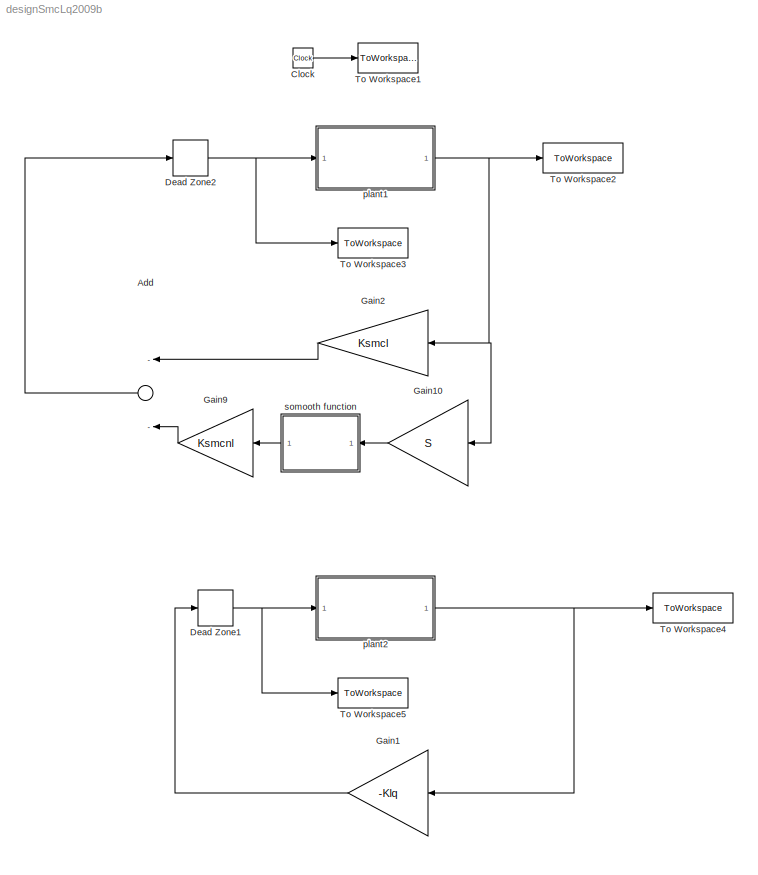
MODEL designSmcLq2009b
KIND model
BLOCK [Sum] Add
  InputSameDT = off
  Inputs = --
  OutDataTypeMode = Inherit via internal rule
  OutDataTypeStr = Inherit: Inherit via internal rule
  Ports = [2, 1]
  SID = 442
  SaturateOnIntegerOverflow = off
BLOCK [Clock] Clock
  SID = 120
BLOCK [DeadZone] Dead Zone1
  LowerValue = -amp
  SID = 465
  UpperValue = amp
BLOCK [DeadZone] Dead Zone2
  LowerValue = -amp
  SID = 467
  UpperValue = amp
BLOCK [Gain] Gain1
  Gain = -Klq
  Multiplication = Matrix(K*u)
  OutDataTypeMode = Inherit via internal rule
  OutDataTypeStr = Inherit: Inherit via internal rule
  ParamDataTypeStr = Inherit: Inherit via internal rule
  ParameterDataTypeMode = Inherit via internal rule
  SID = 463
  SaturateOnIntegerOverflow = off
BLOCK [Gain] Gain10
  Gain = S
  Multiplication = Matrix(K*u)
  OutDataTypeMode = Inherit via internal rule
  OutDataTypeStr = Inherit: Inherit via internal rule
  ParamDataTypeStr = Inherit: Inherit via internal rule
  ParameterDataTypeMode = Inherit via internal rule
  SID = 418
  SaturateOnIntegerOverflow = off
BLOCK [Gain] Gain2
  Gain = Ksmcl
  Multiplication = Matrix(K*u)
  OutDataTypeMode = Inherit via internal rule
  OutDataTypeStr = Inherit: Inherit via internal rule
  ParamDataTypeStr = Inherit: Inherit via internal rule
  ParameterDataTypeMode = Inherit via internal rule
  SID = 431
  SaturateOnIntegerOverflow = off
BLOCK [Gain] Gain9
  Gain = Ksmcnl
  OutDataTypeMode = Inherit via internal rule
  OutDataTypeStr = Inherit: Inherit via internal rule
  ParamDataTypeStr = Inherit: Inherit via internal rule
  ParameterDataTypeMode = Inherit via internal rule
  SID = 420
  SaturateOnIntegerOverflow = off
BLOCK [ToWorkspace] To Workspace1
  MaxDataPoints = inf
  Ports = [1]
  SID = 121
  SampleTime = -1
  VariableName = simTime
BLOCK [ToWorkspace] To Workspace2
  MaxDataPoints = inf
  Ports = [1]
  SID = 433
  SampleTime = -1
  VariableName = X
BLOCK [ToWorkspace] To Workspace3
  MaxDataPoints = inf
  Ports = [1]
  SID = 434
  SampleTime = -1
  VariableName = u
BLOCK [ToWorkspace] To Workspace4
  MaxDataPoints = inf
  Ports = [1]
  SID = 447
  SampleTime = -1
  VariableName = Xlq
BLOCK [ToWorkspace] To Workspace5
  MaxDataPoints = inf
  Ports = [1]
  SID = 448
  SampleTime = -1
  VariableName = ulq
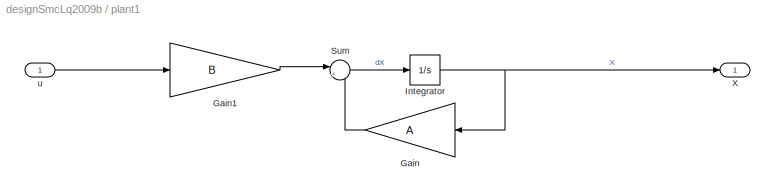
BLOCK [SubSystem] plant1
  FunctionWithSeparateData = off
  MaskHideContents = off
  MinAlgLoopOccurrences = off
  Opaque = off
  Ports = [1, 1]
  PropExecContextOutsideSubsystem = off
  RTWSystemCode = Auto
  RequestExecContextInheritance = off
  SID = 435
BLOCK [Gain] plant1/Gain
  Gain = A
  Multiplication = Matrix(K*u)
  OutDataTypeMode = Inherit via internal rule
  OutDataTypeStr = Inherit: Inherit via internal rule
  ParamDataTypeStr = Inherit: Inherit via internal rule
  ParameterDataTypeMode = Inherit via internal rule
  SID = 437
  SaturateOnIntegerOverflow = off
BLOCK [Gain] plant1/Gain1
  Gain = B
  Multiplication = Matrix(K*u)
  OutDataTypeMode = Inherit via internal rule
  OutDataTypeStr = Inherit: Inherit via internal rule
  ParamDataTypeStr = Inherit: Inherit via internal rule
  ParameterDataTypeMode = Inherit via internal rule
  SID = 438
  SaturateOnIntegerOverflow = off
BLOCK [Integrator] plant1/Integrator
  InitialCondition = x0
  Ports = [1, 1]
  SID = 439
BLOCK [Sum] plant1/Sum
  IconShape = round
  InputSameDT = off
  Inputs = |++
  OutDataTypeMode = Inherit via internal rule
  OutDataTypeStr = Inherit: Inherit via internal rule
  Ports = [2, 1]
  SID = 440
  SaturateOnIntegerOverflow = off
BLOCK [Outport] plant1/X
  IconDisplay = Port number
  SID = 441
BLOCK [Inport] plant1/u
  IconDisplay = Port number
  SID = 436
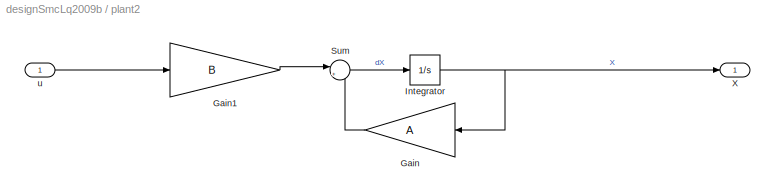
BLOCK [SubSystem] plant2
  FunctionWithSeparateData = off
  MaskHideContents = off
  MinAlgLoopOccurrences = off
  Opaque = off
  Ports = [1, 1]
  PropExecContextOutsideSubsystem = off
  RTWSystemCode = Auto
  RequestExecContextInheritance = off
  SID = 449
BLOCK [Gain] plant2/Gain
  Gain = A
  Multiplication = Matrix(K*u)
  OutDataTypeMode = Inherit via internal rule
  OutDataTypeStr = Inherit: Inherit via internal rule
  ParamDataTypeStr = Inherit: Inherit via internal rule
  ParameterDataTypeMode = Inherit via internal rule
  SID = 451
  SaturateOnIntegerOverflow = off
BLOCK [Gain] plant2/Gain1
  Gain = B
  Multiplication = Matrix(K*u)
  OutDataTypeMode = Inherit via internal rule
  OutDataTypeStr = Inherit: Inherit via internal rule
  ParamDataTypeStr = Inherit: Inherit via internal rule
  ParameterDataTypeMode = Inherit via internal rule
  SID = 452
  SaturateOnIntegerOverflow = off
BLOCK [Integrator] plant2/Integrator
  InitialCondition = x0
  Ports = [1, 1]
  SID = 453
BLOCK [Sum] plant2/Sum
  IconShape = round
  InputSameDT = off
  Inputs = |++
  OutDataTypeMode = Inherit via internal rule
  OutDataTypeStr = Inherit: Inherit via internal rule
  Ports = [2, 1]
  SID = 454
  SaturateOnIntegerOverflow = off
BLOCK [Outport] plant2/X
  IconDisplay = Port number
  SID = 455
BLOCK [Inport] plant2/u
  IconDisplay = Port number
  SID = 450
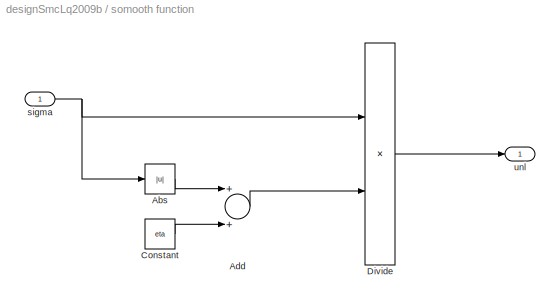
BLOCK [SubSystem] somooth function
  FunctionWithSeparateData = off
  MaskHideContents = off
  MinAlgLoopOccurrences = off
  Opaque = off
  Ports = [1, 1]
  PropExecContextOutsideSubsystem = off
  RTWSystemCode = Auto
  RequestExecContextInheritance = off
  SID = 421
BLOCK [Abs] somooth function/Abs
  SID = 423
  SaturateOnIntegerOverflow = off
BLOCK [Sum] somooth function/Add
  InputSameDT = off
  OutDataTypeMode = Inherit via internal rule
  OutDataTypeStr = Inherit: Inherit via internal rule
  Ports = [2, 1]
  SID = 424
  SaturateOnIntegerOverflow = off
BLOCK [Constant] somooth function/Constant
  SID = 425
  Value = eta
BLOCK [Product] somooth function/Divide
  InputSameDT = off
  Inputs = */
  OutDataTypeMode = Inherit via internal rule
  OutDataTypeStr = Inherit: Inherit via internal rule
  Ports = [2, 1]
  RndMeth = Floor
  SID = 426
  SaturateOnIntegerOverflow = off
BLOCK [Inport] somooth function/sigma
  IconDisplay = Port number
  SID = 422
BLOCK [Outport] somooth function/unl
  IconDisplay = Port number
  SID = 427
LINE Add:1 -> Dead Zone2:1
LINE Clock:1 -> To Workspace1:1
NET Dead Zone1:1 -> To Workspace5:1, plant2:1
NET Dead Zone2:1 -> To Workspace3:1, plant1:1
LINE Gain10:1 -> somooth function:1
LINE Gain1:1 -> Dead Zone1:1
LINE Gain2:1 -> Add:1
LINE Gain9:1 -> Add:2
LINE plant1/Gain1:1 -> plant1/Sum:1
LINE plant1/Gain:1 -> plant1/Sum:2
NET plant1/Integrator:1 -> plant1/Gain:1, plant1/X:1
LINE plant1/Sum:1 -> plant1/Integrator:1
LINE plant1/u:1 -> plant1/Gain1:1
NET plant1:1 -> Gain10:1, Gain2:1, To Workspace2:1
LINE plant2/Gain1:1 -> plant2/Sum:1
LINE plant2/Gain:1 -> plant2/Sum:2
NET plant2/Integrator:1 -> plant2/Gain:1, plant2/X:1
LINE plant2/Sum:1 -> plant2/Integrator:1
LINE plant2/u:1 -> plant2/Gain1:1
NET plant2:1 -> Gain1:1, To Workspace4:1
LINE somooth function/Abs:1 -> somooth function/Add:1
LINE somooth function/Add:1 -> somooth function/Divide:2
LINE somooth function/Constant:1 -> somooth function/Add:2
LINE somooth function/Divide:1 -> somooth function/unl:1
NET somooth function/sigma:1 -> somooth function/Abs:1, somooth function/Divide:1
LINE somooth function:1 -> Gain9:1
note: NET lines group one-source signal fan-out (src -> all destinations, sorted); 1:1 wires keep LINE
